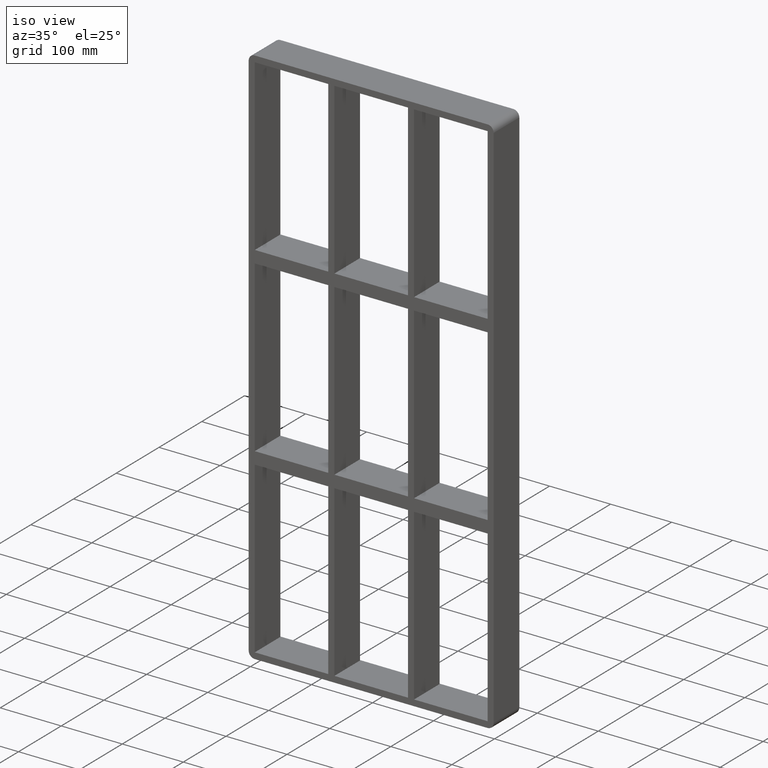
[diagram: clean part render]
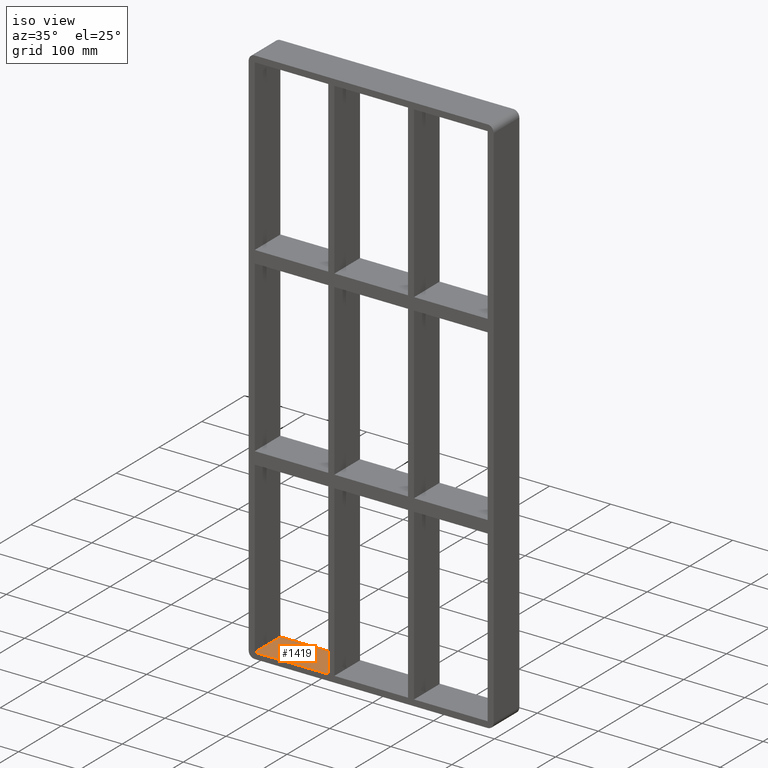
[diagram: same view with one face highlighted and labeled with its STEP entity id]
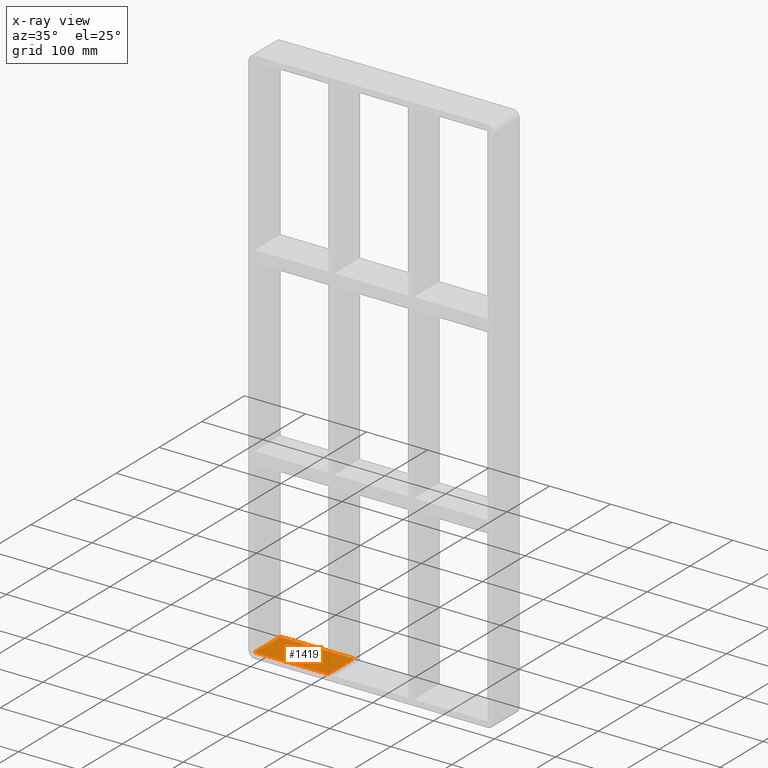
[diagram: x-ray of the same camera — body ghosted, the highlighted face saturated]
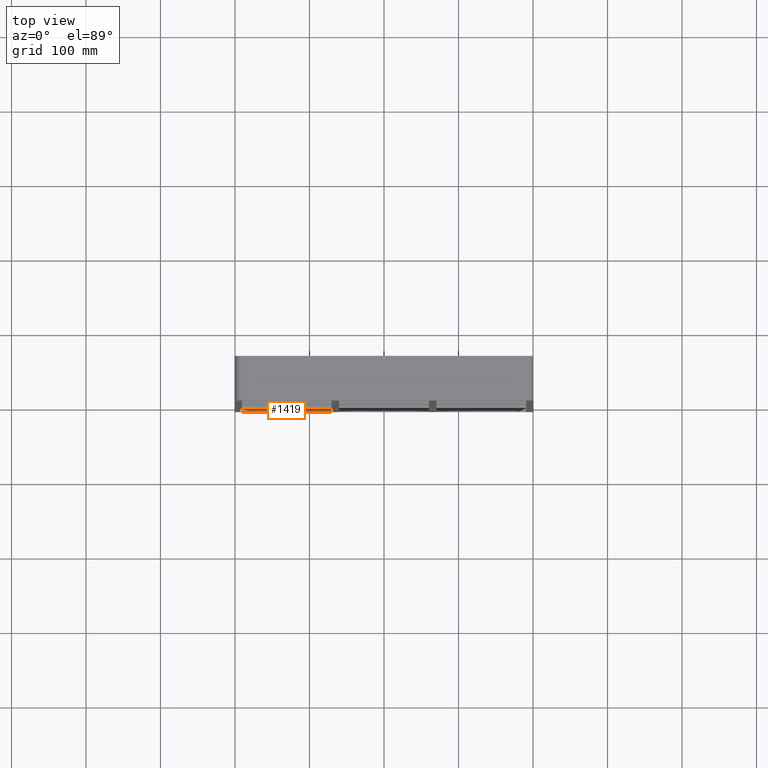
[diagram: same view with one face highlighted and labeled with its STEP entity id]
A machine part, iso view. The second image highlights one B-rep face of the part: STEP entity #1419.
The next image is the same camera in x-ray: the body ghosted, the highlighted face saturated — about 0% of this face is hidden behind the body in this view.
A second angle (top view) of the same face is appended — the face is thin or edge-on in the first view.
In plain terms, the highlighted planar face has unit normal (0, 0, -1).
Its self-contained STEP definition (entity closure, byte-faithful):
#716=CARTESIAN_POINT('',(-190.75000000000003,57.0,-437.0));
#717=VERTEX_POINT('',#716);
#724=CARTESIAN_POINT('',(-70.250000000001265,57.0,-437.0));
#725=VERTEX_POINT('',#724);
#726=CARTESIAN_POINT('',(-190.75000000000006,57.0,-437.0));
#727=DIRECTION('',(1.0,0.0,0.0));
#728=VECTOR('',#727,120.49999999999879);
#729=LINE('',#726,#728);
#730=EDGE_CURVE('',#717,#725,#729,.T.);
#1187=CARTESIAN_POINT('',(-70.250000000001265,-3.0,-437.0));
#1188=VERTEX_POINT('',#1187);
#1195=CARTESIAN_POINT('',(-190.75000000000003,-3.0,-437.0));
#1196=VERTEX_POINT('',#1195);
#1197=CARTESIAN_POINT('',(-70.250000000001265,-3.0,-437.0));
#1198=DIRECTION('',(-1.0,0.0,0.0));
#1199=VECTOR('',#1198,120.49999999999879);
#1200=LINE('',#1197,#1199);
#1201=EDGE_CURVE('',#1188,#1196,#1200,.T.);
#1381=CARTESIAN_POINT('',(-70.250000000001265,-3.0,-437.0));
#1382=DIRECTION('',(0.0,1.0,0.0));
#1383=VECTOR('',#1382,60.000000000000007);
#1384=LINE('',#1381,#1383);
#1385=EDGE_CURVE('',#1188,#725,#1384,.T.);
#1403=CARTESIAN_POINT('',(190.75000000000003,0.0,-437.0));
#1404=DIRECTION('',(0.0,0.0,-1.0));
#1405=DIRECTION('',(-1.0,0.0,0.0));
#1406=AXIS2_PLACEMENT_3D('',#1403,#1404,#1405);
#1407=PLANE('',#1406);
#1408=ORIENTED_EDGE('',*,*,#1385,.T.);
#1409=ORIENTED_EDGE('',*,*,#730,.F.);
#1410=CARTESIAN_POINT('',(-190.75000000000003,-3.0,-437.0));
#1411=DIRECTION('',(0.0,1.0,0.0));
#1412=VECTOR('',#1411,60.0);
#1413=LINE('',#1410,#1412);
#1414=EDGE_CURVE('',#1196,#717,#1413,.T.);
#1415=ORIENTED_EDGE('',*,*,#1414,.F.);
#1416=ORIENTED_EDGE('',*,*,#1201,.F.);
#1417=EDGE_LOOP('',(#1408,#1409,#1415,#1416));
#1418=FACE_OUTER_BOUND('',#1417,.T.);
#1419=ADVANCED_FACE('',(#1418),#1407,.F.);